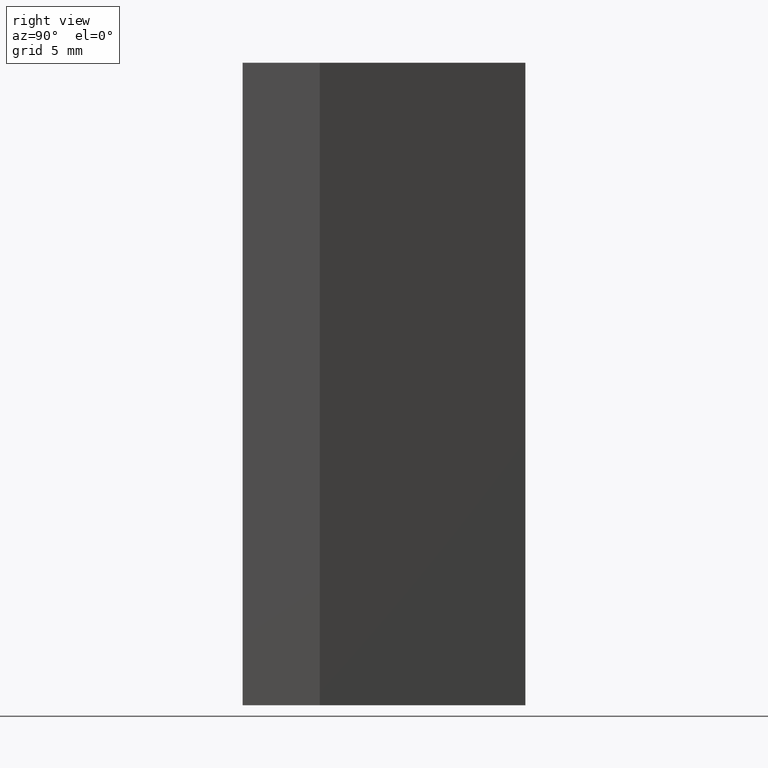
[diagram: clean part render]
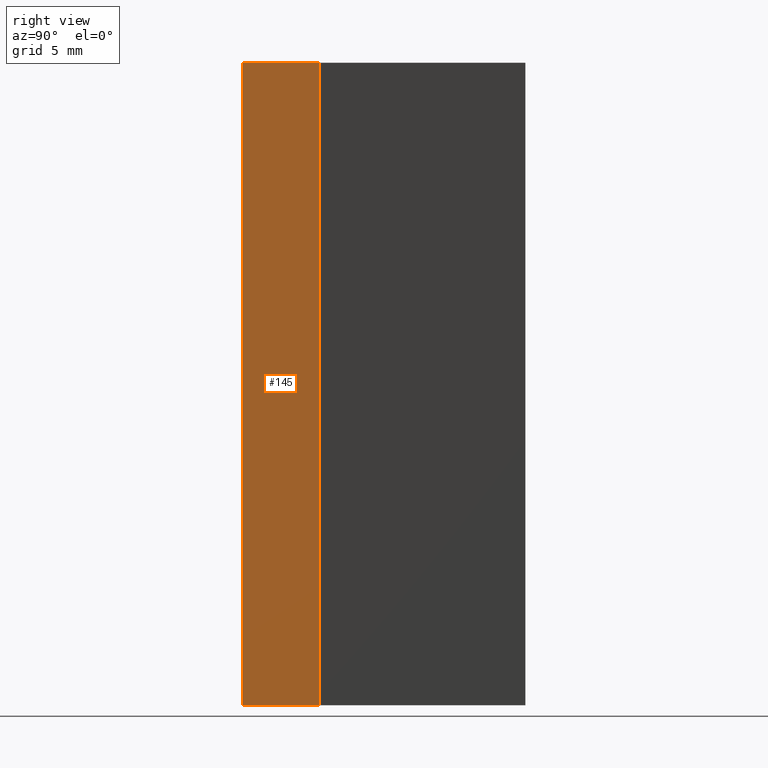
[diagram: same view with one face highlighted and labeled with its STEP entity id]
A machine part, right view. The second image highlights one B-rep face of the part: STEP entity #145.
In plain terms, the highlighted planar face has unit normal (1, -0, 0).
Its self-contained STEP definition (entity closure, byte-faithful):
#19=FACE_OUTER_BOUND('',#27,.T.);
#27=EDGE_LOOP('',(#112,#113,#114,#115));
#35=LINE('',#227,#53);
#42=LINE('',#240,#60);
#43=LINE('',#243,#61);
#44=LINE('',#244,#62);
#53=VECTOR('',#188,10.);
#60=VECTOR('',#199,10.);
#61=VECTOR('',#202,10.);
#62=VECTOR('',#203,10.);
#71=VERTEX_POINT('',#224);
#72=VERTEX_POINT('',#226);
#76=VERTEX_POINT('',#238);
#77=VERTEX_POINT('',#242);
#83=EDGE_CURVE('',#72,#71,#35,.T.);
#90=EDGE_CURVE('',#71,#76,#42,.T.);
#91=EDGE_CURVE('',#76,#77,#43,.T.);
#92=EDGE_CURVE('',#72,#77,#44,.T.);
#112=ORIENTED_EDGE('',*,*,#91,.T.);
#113=ORIENTED_EDGE('',*,*,#92,.F.);
#114=ORIENTED_EDGE('',*,*,#83,.T.);
#115=ORIENTED_EDGE('',*,*,#90,.T.);
#137=PLANE('',#176);
#145=ADVANCED_FACE('',(#19),#137,.T.);
#176=AXIS2_PLACEMENT_3D('',#241,#200,#201);
#188=DIRECTION('',(1.85037170770859E-16,1.,0.));
#199=DIRECTION('',(0.,0.,1.));
#200=DIRECTION('center_axis',(1.,-1.85037170770859E-16,0.));
#201=DIRECTION('ref_axis',(0.,0.,-1.));
#202=DIRECTION('',(-1.85037170770859E-16,-1.,0.));
#203=DIRECTION('',(0.,0.,1.));
#224=CARTESIAN_POINT('',(4.,3.,-12.5));
#226=CARTESIAN_POINT('',(4.,-5.48349377874647E-17,-12.5));
#227=CARTESIAN_POINT('',(4.,-5.48349377874647E-17,-12.5));
#238=CARTESIAN_POINT('',(4.,3.,12.5));
#240=CARTESIAN_POINT('',(4.,3.,0.));
#241=CARTESIAN_POINT('Origin',(4.,3.,0.));
#242=CARTESIAN_POINT('',(4.,-5.48349377874647E-17,12.5));
#243=CARTESIAN_POINT('',(4.,-5.48349377874647E-17,12.5));
#244=CARTESIAN_POINT('',(4.,-5.48349377874647E-17,0.));